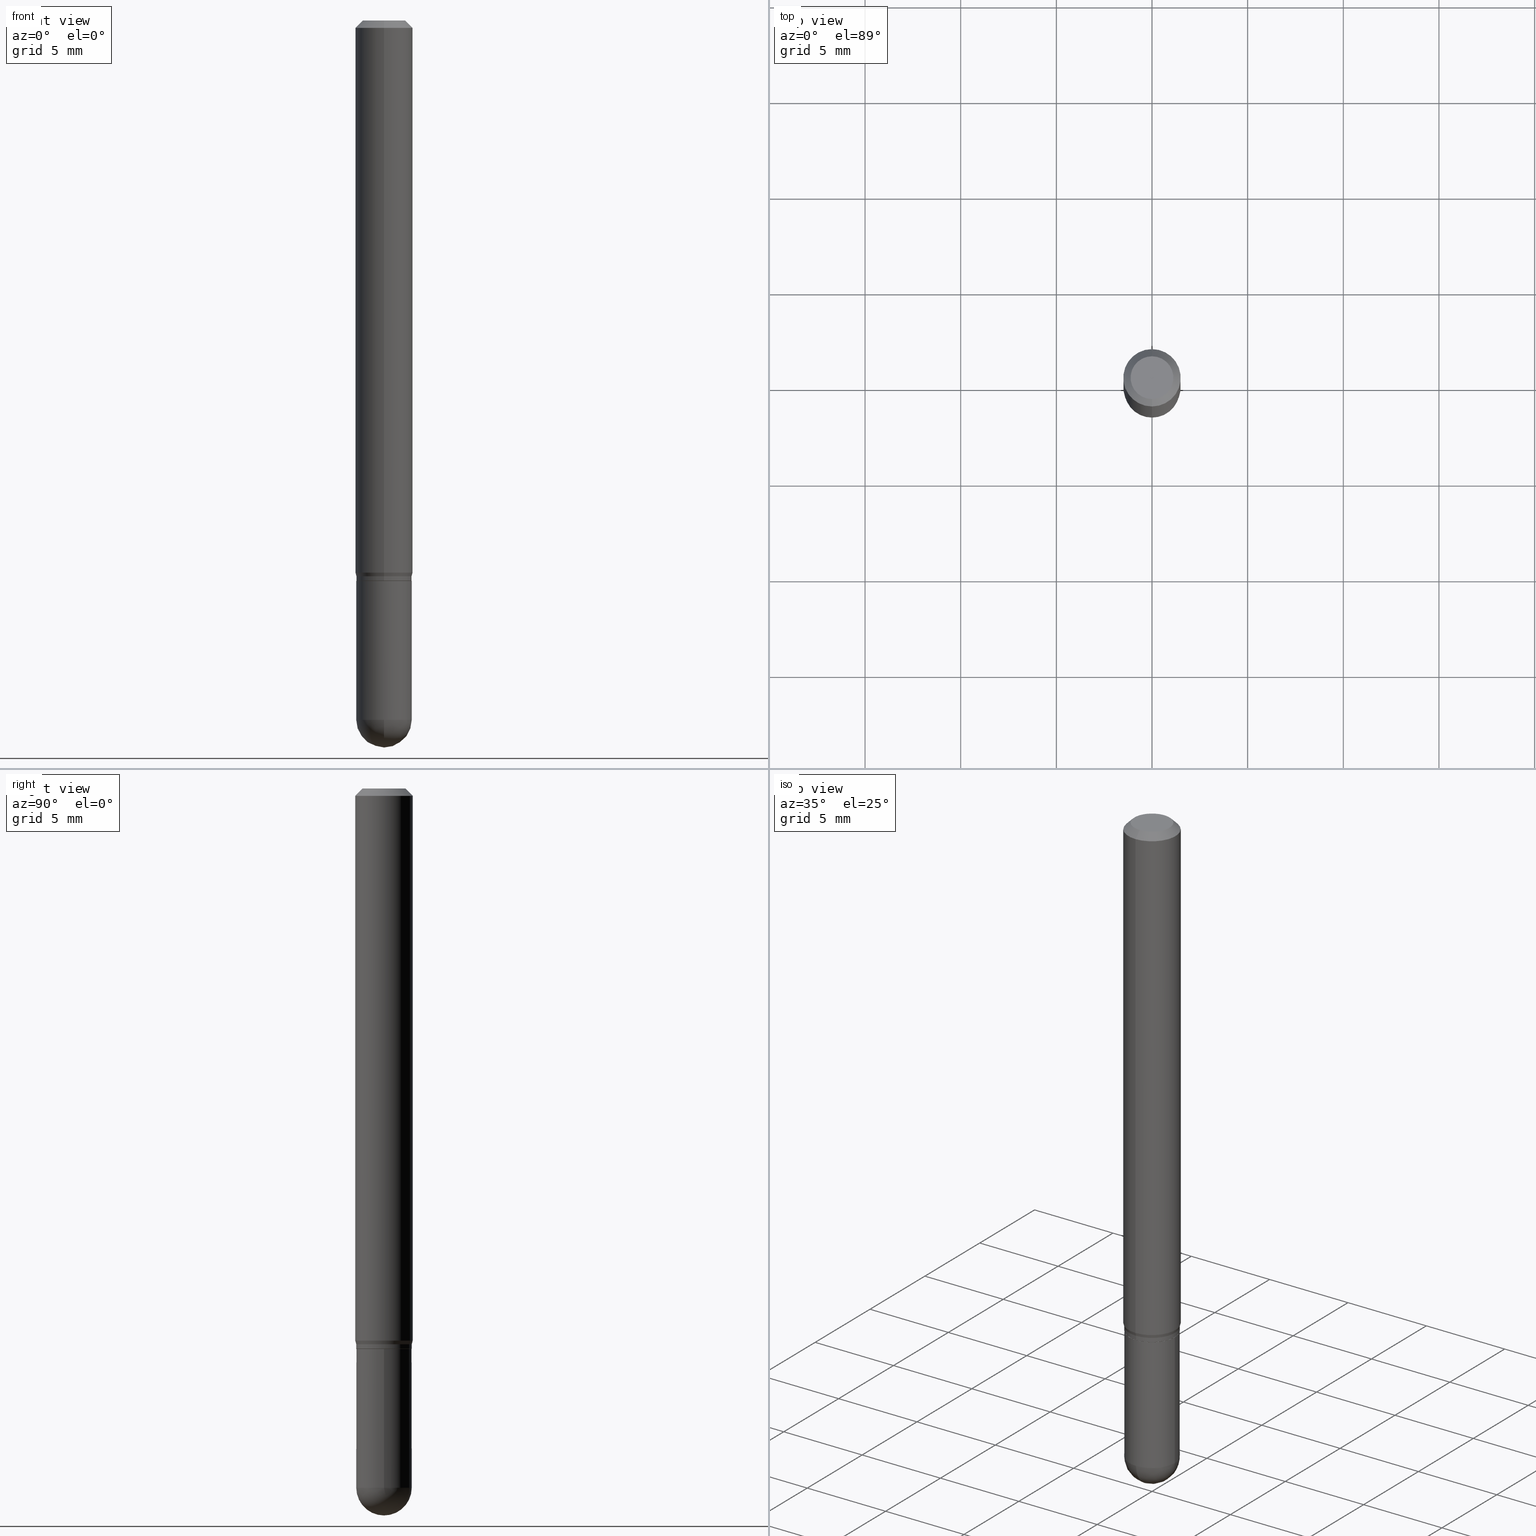
[diagram: canonical four-view strip — front | top / right | iso, engineering-drawing reading convention]
A machine part, canonical four-view strip (front | top / right | iso — engineering-drawing reading convention). The complete STEP part file that produces these views, byte-faithful:
ISO-10303-21;
HEADER;
FILE_DESCRIPTION (( 'STEP AP203' ),
    '1' );
FILE_NAME ('02958.STEP',
    '2024-03-07T22:04:44',
    ( '' ),
    ( '' ),
    'SwSTEP 2.0',
    'SolidWorks 2023',
    '' );
FILE_SCHEMA (( 'CONFIG_CONTROL_DESIGN' ));
ENDSEC;

DATA;
#1 = ORIENTED_EDGE ( 'NONE', *, *, #488, .F. ) ;
#2 = DIRECTION ( 'NONE',  ( -2.445514615068268608E-29, 3.491415737915221099E-15, 1.000000000000000000 ) ) ;
#3 = DATE_AND_TIME ( #42, #182 ) ;
#4 = CC_DESIGN_PERSON_AND_ORGANIZATION_ASSIGNMENT ( #329, #292, ( #304 ) ) ;
#5 = ORIENTED_EDGE ( 'NONE', *, *, #467, .T. ) ;
#6 = DIRECTION ( 'NONE',  ( -2.445514615068268608E-29, 3.491415737915220705E-15, 1.000000000000000000 ) ) ;
#7 = CARTESIAN_POINT ( 'NONE',  ( 2.819922902635220210E-29, -4.025951487390040680E-15, -1.153100000000000014 ) ) ;
#8 = ORIENTED_EDGE ( 'NONE', *, *, #205, .F. ) ;
#9 = AXIS2_PLACEMENT_3D ( 'NONE', #34, #198, #342 ) ;
#10 = DIRECTION ( 'NONE',  ( -2.445468806185136597E-29, 3.491481338843145583E-15, 1.000000000000000000 ) ) ;
#11 = CARTESIAN_POINT ( 'NONE',  ( 3.519029612100411141E-29, -5.024241646595286064E-15, -1.438999999999999835 ) ) ;
#12 = CALENDAR_DATE ( 2024, 7, 3 ) ;
#13 = VERTEX_POINT ( 'NONE', #375 ) ;
#14 = CARTESIAN_POINT ( 'NONE',  ( 3.519029612100411141E-29, -5.024241646595286064E-15, -1.438999999999999835 ) ) ;
#15 = VERTEX_POINT ( 'NONE', #222 ) ;
#16 = ORIENTED_EDGE ( 'NONE', *, *, #467, .F. ) ;
#17 = PERSON_AND_ORGANIZATION ( #426, #233 ) ;
#18 = CARTESIAN_POINT ( 'NONE',  ( 2.819922902635220210E-29, -4.025951487390040680E-15, -1.153100000000000014 ) ) ;
#19 = ORIENTED_EDGE ( 'NONE', *, *, #94, .F. ) ;
#20 = VECTOR ( 'NONE', #431, 39.37007874015748143 ) ;
#21 = DIRECTION ( 'NONE',  ( -2.445514615068268608E-29, 3.491415737915220705E-15, 1.000000000000000000 ) ) ;
#22 = CYLINDRICAL_SURFACE ( 'NONE', #78, 0.05904999999999999832 ) ;
#23 = CALENDAR_DATE ( 2024, 7, 3 ) ;
#24 = CARTESIAN_POINT ( 'NONE',  ( -3.952356875570144057E-16, -0.05660000000000402209, -1.153599999999999737 ) ) ;
#25 = CARTESIAN_POINT ( 'NONE',  ( 0.05709999999999999798, -3.987271688958858118E-16, 2.784296938979478878E-30 ) ) ;
#26 = ADVANCED_FACE ( 'NONE', ( #91 ), #420, .T. ) ;
#27 = APPROVAL_PERSON_ORGANIZATION ( #321, #50, #58 ) ;
#28 = LINE ( 'NONE', #191, #305 ) ;
#29 = CC_DESIGN_PERSON_AND_ORGANIZATION_ASSIGNMENT ( #166, #38, ( #331 ) ) ;
#30 = CARTESIAN_POINT ( 'NONE',  ( 0.000000000000000000, 0.000000000000000000, 0.000000000000000000 ) ) ;
#31 = ADVANCED_FACE ( 'NONE', ( #298 ), #457, .T. ) ;
#32 = CONICAL_SURFACE ( 'NONE', #9, 0.05710000000000005349, 0.2617993877991512397 ) ;
#33 = AXIS2_PLACEMENT_3D ( 'NONE', #409, #49, #245 ) ;
#34 = CARTESIAN_POINT ( 'NONE',  ( 2.796690513792071277E-29, -3.992783037879846006E-15, -1.143599999999999728 ) ) ;
#35 = DIRECTION ( 'NONE',  ( -2.445514615068268608E-29, 3.491415737915220705E-15, 1.000000000000000000 ) ) ;
#36 = PERSON_AND_ORGANIZATION ( #426, #233 ) ;
#37 = EDGE_CURVE ( 'NONE', #335, #48, #389, .T. ) ;
#38 = PERSON_AND_ORGANIZATION_ROLE ( 'design_owner' ) ;
#39 = CIRCLE ( 'NONE', #408, 0.04404999999999999888 ) ;
#40 = CIRCLE ( 'NONE', #133, 0.04404999999999999888 ) ;
#41 = VERTEX_POINT ( 'NONE', #280 ) ;
#42 = CALENDAR_DATE ( 2024, 7, 3 ) ;
#43 = CYLINDRICAL_SURFACE ( 'NONE', #169, 0.05710000000000005349 ) ;
#44 = MANIFOLD_SOLID_BREP ( 'Body-Move/Copy2[2]', #350 ) ;
#45 = DIRECTION ( 'NONE',  ( 1.000000000000000000, -6.982962677686266711E-15, 4.876176775795935232E-29 ) ) ;
#46 = CARTESIAN_POINT ( 'NONE',  ( 2.241747065286492657E-45, -3.200500596455453038E-31, -9.166770263705467281E-17 ) ) ;
#47 = EDGE_LOOP ( 'NONE', ( #19, #473, #493, #129, #296 ) ) ;
#48 = VERTEX_POINT ( 'NONE', #77 ) ;
#49 = DIRECTION ( 'NONE',  ( 2.445514615068268608E-29, -3.491415737915220705E-15, -1.000000000000000000 ) ) ;
#50 = APPROVAL ( #54, 'UNSPECIFIED' ) ;
#51 = VECTOR ( 'NONE', #82, 39.37007874015748143 ) ;
#52 = ORIENTED_EDGE ( 'NONE', *, *, #307, .F. ) ;
#53 = CARTESIAN_POINT ( 'NONE',  ( -3.987271688958582017E-16, -0.05710000000000405029, -1.143599999999999728 ) ) ;
#54 = APPROVAL_STATUS ( 'not_yet_approved' ) ;
#55 = DIRECTION ( 'NONE',  ( 1.000000000000000000, -6.982962677686268288E-15, 0.000000000000000000 ) ) ;
#56 = ORIENTED_EDGE ( 'NONE', *, *, #496, .F. ) ;
#57 = ADVANCED_FACE ( 'NONE', ( #399 ), #43, .T. ) ;
#58 = APPROVAL_ROLE ( '' ) ;
#59 = CIRCLE ( 'NONE', #261, 0.05710000000000005349 ) ;
#60 = CARTESIAN_POINT ( 'NONE',  ( 2.821145659942754453E-29, -4.027697195258998875E-15, -1.153599999999999959 ) ) ;
#61 = CONICAL_SURFACE ( 'NONE', #33, 0.05904999999999999832, 0.7853981633974483900 ) ;
#62 = CARTESIAN_POINT ( 'NONE',  ( 3.514146612589196939E-29, -5.031234379818417148E-15, -1.438999999999999835 ) ) ;
#63 = CALENDAR_DATE ( 2024, 7, 3 ) ;
#64 = CONICAL_SURFACE ( 'NONE', #425, 0.05904999999999999832, 0.7853981633974483900 ) ;
#65 = PLANE ( 'NONE',  #154 ) ;
#66 = DIRECTION ( 'NONE',  ( -6.982962677686265922E-15, -1.000000000000000000, 3.491415737915221099E-15 ) ) ;
#67 = EDGE_LOOP ( 'NONE', ( #241, #209, #106, #450 ) ) ;
#68 = CC_DESIGN_PERSON_AND_ORGANIZATION_ASSIGNMENT ( #17, #449, ( #304 ) ) ;
#69 = EDGE_LOOP ( 'NONE', ( #444, #111, #56, #247 ) ) ;
#70 = DIRECTION ( 'NONE',  ( -2.445514615068268608E-29, 3.491415737915220705E-15, 1.000000000000000000 ) ) ;
#71 = EDGE_LOOP ( 'NONE', ( #360, #476, #149, #84 ) ) ;
#72 = DIRECTION ( 'NONE',  ( -2.445514615068268608E-29, 3.491415737915220705E-15, 1.000000000000000000 ) ) ;
#73 = AXIS2_PLACEMENT_3D ( 'NONE', #14, #176, #229 ) ;
#74 = CARTESIAN_POINT ( 'NONE',  ( 3.519029612100411141E-29, -5.024241646595286064E-15, -1.438999999999999835 ) ) ;
#75 = CC_DESIGN_PERSON_AND_ORGANIZATION_ASSIGNMENT ( #223, #334, ( #239 ) ) ;
#76 = DIRECTION ( 'NONE',  ( -6.982962677686265922E-15, -1.000000000000000000, 2.413293280622141084E-15 ) ) ;
#77 = CARTESIAN_POINT ( 'NONE',  ( -3.987271688958507568E-16, -0.05710000000000504256, -1.438999999999999613 ) ) ;
#78 = AXIS2_PLACEMENT_3D ( 'NONE', #460, #99, #501 ) ;
#79 = CIRCLE ( 'NONE', #374, 0.05710000000000002573 ) ;
#80 = CARTESIAN_POINT ( 'NONE',  ( -4.051124067684085231E-16, -0.05905000000000005383, -0.01499999999999988495 ) ) ;
#81 = DIRECTION ( 'NONE',  ( -6.982962677686265922E-15, -1.000000000000000000, 3.491415737915221099E-15 ) ) ;
#82 = DIRECTION ( 'NONE',  ( 4.937700262164548042E-15, 0.7071067811865451302, -0.7071067811865499042 ) ) ;
#83 = DIRECTION ( 'NONE',  ( -2.445514615068268608E-29, 3.491415737915220705E-15, 1.000000000000000000 ) ) ;
#84 = ORIENTED_EDGE ( 'NONE', *, *, #337, .F. ) ;
#85 = DATE_AND_TIME ( #398, #104 ) ;
#86 = EDGE_CURVE ( 'NONE', #93, #194, #40, .T. ) ;
#87 = CARTESIAN_POINT ( 'NONE',  ( 0.05709999999999999798, -4.426500041385338787E-15, -1.153599999999999959 ) ) ;
#88 = ORIENTED_EDGE ( 'NONE', *, *, #453, .F. ) ;
#89 = EDGE_LOOP ( 'NONE', ( #286, #512, #327, #290 ) ) ;
#90 = ORIENTED_EDGE ( 'NONE', *, *, #438, .F. ) ;
#91 = FACE_OUTER_BOUND ( 'NONE', #481, .T. ) ;
#92 = COORDINATED_UNIVERSAL_TIME_OFFSET ( 5, 0, .BEHIND. ) ;
#93 = VERTEX_POINT ( 'NONE', #472 ) ;
#94 = EDGE_CURVE ( 'NONE', #335, #406, #118, .T. ) ;
#95 = CARTESIAN_POINT ( 'NONE',  ( 2.821145659942754453E-29, -4.027697195258998875E-15, -1.153599999999999959 ) ) ;
#96 = FACE_OUTER_BOUND ( 'NONE', #267, .T. ) ;
#97 = DESIGN_CONTEXT ( 'detailed design', #500, 'design' ) ;
#98 = EDGE_CURVE ( 'NONE', #435, #48, #79, .T. ) ;
#99 = DIRECTION ( 'NONE',  ( -2.445514615068268608E-29, 3.491415737915220705E-15, 1.000000000000000000 ) ) ;
#100 = EDGE_LOOP ( 'NONE', ( #352, #506, #150, #159 ) ) ;
#101 = AXIS2_PLACEMENT_3D ( 'NONE', #491, #173, #76 ) ;
#102 = AXIS2_PLACEMENT_3D ( 'NONE', #368, #6, #485 ) ;
#103 = DIRECTION ( 'NONE',  ( -6.982962677686265922E-15, -1.000000000000000000, 2.413293280622141084E-15 ) ) ;
#104 = LOCAL_TIME ( 17, 4, 44.00000000000000000, #445 ) ;
#105 = DIRECTION ( 'NONE',  ( -2.445514615068268608E-29, 3.491415737915220705E-15, 1.000000000000000000 ) ) ;
#106 = ORIENTED_EDGE ( 'NONE', *, *, #495, .T. ) ;
#107 = VECTOR ( 'NONE', #2, 39.37007874015748143 ) ;
#108 = EDGE_CURVE ( 'NONE', #469, #15, #318, .T. ) ;
#109 = SPHERICAL_SURFACE ( 'NONE', #168, 0.05710000000000002573 ) ;
#110 = DIRECTION ( 'NONE',  ( -6.982962677686265922E-15, -1.000000000000000000, 2.392161115292697767E-15 ) ) ;
#111 = ORIENTED_EDGE ( 'NONE', *, *, #180, .T. ) ;
#112 = ADVANCED_FACE ( 'NONE', ( #437 ), #355, .F. ) ;
#113 = AXIS2_PLACEMENT_3D ( 'NONE', #30, #70, #309 ) ;
#114 = LINE ( 'NONE', #122, #51 ) ;
#115 = EDGE_LOOP ( 'NONE', ( #177, #163, #319, #90 ) ) ;
#116 = CONICAL_SURFACE ( 'NONE', #492, 0.05659999999999999060, 0.7853981633974739252 ) ;
#117 = CARTESIAN_POINT ( 'NONE',  ( 0.000000000000000000, 0.000000000000000000, 0.000000000000000000 ) ) ;
#118 = LINE ( 'NONE', #277, #415 ) ;
#119 = ADVANCED_FACE ( 'NONE', ( #285 ), #116, .T. ) ;
#120 = LINE ( 'NONE', #148, #217 ) ;
#121 = DIRECTION ( 'NONE',  ( -2.445468806185136877E-29, 3.491481338843145188E-15, 1.000000000000000000 ) ) ;
#122 = CARTESIAN_POINT ( 'NONE',  ( 4.123439461173743285E-16, 0.05904999999999994975, -0.01500000000000029955 ) ) ;
#123 = DIRECTION ( 'NONE',  ( 1.000000000000000000, -6.982962677686268288E-15, 0.000000000000000000 ) ) ;
#124 = DIRECTION ( 'NONE',  ( -1.000000000000000000, 6.982962677686265922E-15, -4.876176775795935793E-29 ) ) ;
#125 = APPROVAL_PERSON_ORGANIZATION ( #351, #300, #274 ) ;
#126 = AXIS2_PLACEMENT_3D ( 'NONE', #288, #21, #254 ) ;
#127 = APPROVAL ( #179, 'UNSPECIFIED' ) ;
#128 =( NAMED_UNIT ( * ) PLANE_ANGLE_UNIT ( ) SI_UNIT ( $, .RADIAN. ) );
#129 = ORIENTED_EDGE ( 'NONE', *, *, #461, .T. ) ;
#130 = VERTEX_POINT ( 'NONE', #226 ) ;
#131 = ORIENTED_EDGE ( 'NONE', *, *, #188, .F. ) ;
#132 = VECTOR ( 'NONE', #471, 39.37007874015748143 ) ;
#133 = AXIS2_PLACEMENT_3D ( 'NONE', #46, #510, #153 ) ;
#134 = CYLINDRICAL_SURFACE ( 'NONE', #258, 0.05710000000000005349 ) ;
#135 = SECURITY_CLASSIFICATION_LEVEL ( 'unclassified' ) ;
#136 = ORIENTED_EDGE ( 'NONE', *, *, #270, .T. ) ;
#137 = DIRECTION ( 'NONE',  ( -6.982962677686265922E-15, -1.000000000000000000, 2.413293280622141084E-15 ) ) ;
#138 = CARTESIAN_POINT ( 'NONE',  ( 2.796690513792071277E-29, -3.992783037879846006E-15, -1.143599999999999728 ) ) ;
#139 = LINE ( 'NONE', #303, #184 ) ;
#140 = ADVANCED_BREP_SHAPE_REPRESENTATION ( '02958', ( #386, #44, #489 ), #388 ) ;
#141 = CC_DESIGN_DATE_AND_TIME_ASSIGNMENT ( #3, #161, ( #263 ) ) ;
#142 = AXIS2_PLACEMENT_3D ( 'NONE', #62, #365, #276 ) ;
#143 = DIRECTION ( 'NONE',  ( -6.982962677686265922E-15, -1.000000000000000000, 3.505890868245046092E-15 ) ) ;
#144 = EDGE_CURVE ( 'NONE', #48, #404, #427, .T. ) ;
#145 = CIRCLE ( 'NONE', #348, 0.05709999999999999798 ) ;
#146 = ORIENTED_EDGE ( 'NONE', *, *, #270, .F. ) ;
#147 = EDGE_CURVE ( 'NONE', #358, #483, #456, .T. ) ;
#148 = CARTESIAN_POINT ( 'NONE',  ( -3.987271688958861569E-16, -0.05710000000000005349, 1.993598386349593085E-16 ) ) ;
#149 = ORIENTED_EDGE ( 'NONE', *, *, #257, .F. ) ;
#150 = ORIENTED_EDGE ( 'NONE', *, *, #488, .T. ) ;
#151 = EDGE_CURVE ( 'NONE', #469, #483, #332, .T. ) ;
#152 = CIRCLE ( 'NONE', #465, 0.05709999999999999798 ) ;
#153 = DIRECTION ( 'NONE',  ( -6.982962677686265133E-15, -1.000000000000000000, 3.491415737915221099E-15 ) ) ;
#154 = AXIS2_PLACEMENT_3D ( 'NONE', #60, #418, #66 ) ;
#155 = ORIENTED_EDGE ( 'NONE', *, *, #188, .T. ) ;
#156 = LINE ( 'NONE', #316, #107 ) ;
#157 = DIRECTION ( 'NONE',  ( -2.445514615068268608E-29, 3.491415737915221099E-15, 1.000000000000000000 ) ) ;
#158 = CARTESIAN_POINT ( 'NONE',  ( 3.514146612589196939E-29, -5.031234379818417148E-15, -1.438999999999999835 ) ) ;
#159 = ORIENTED_EDGE ( 'NONE', *, *, #453, .T. ) ;
#160 = FACE_OUTER_BOUND ( 'NONE', #364, .T. ) ;
#161 = DATE_TIME_ROLE ( 'creation_date' ) ;
#162 = CARTESIAN_POINT ( 'NONE',  ( 0.000000000000000000, 0.000000000000000000, 0.000000000000000000 ) ) ;
#163 = ORIENTED_EDGE ( 'NONE', *, *, #243, .T. ) ;
#164 = CC_DESIGN_PERSON_AND_ORGANIZATION_ASSIGNMENT ( #36, #345, ( #263 ) ) ;
#165 = ORIENTED_EDGE ( 'NONE', *, *, #307, .T. ) ;
#166 = PERSON_AND_ORGANIZATION ( #426, #233 ) ;
#167 = ORIENTED_EDGE ( 'NONE', *, *, #400, .T. ) ;
#168 = AXIS2_PLACEMENT_3D ( 'NONE', #271, #268, #266 ) ;
#169 = AXIS2_PLACEMENT_3D ( 'NONE', #162, #208, #202 ) ;
#170 = ORIENTED_EDGE ( 'NONE', *, *, #94, .T. ) ;
#171 = CYLINDRICAL_SURFACE ( 'NONE', #192, 0.05709999999999999798 ) ;
#172 = APPROVAL_DATE_TIME ( #372, #127 ) ;
#173 = DIRECTION ( 'NONE',  ( -2.445514615068268608E-29, 3.491415737915220705E-15, 1.000000000000000000 ) ) ;
#174 = ORIENTED_EDGE ( 'NONE', *, *, #147, .F. ) ;
#175 = ADVANCED_FACE ( 'NONE', ( #250 ), #311, .F. ) ;
#176 = DIRECTION ( 'NONE',  ( -2.445468806185136597E-29, 3.491481338843145583E-15, 1.000000000000000000 ) ) ;
#177 = ORIENTED_EDGE ( 'NONE', *, *, #220, .F. ) ;
#178 = VERTEX_POINT ( 'NONE', #320 ) ;
#179 = APPROVAL_STATUS ( 'not_yet_approved' ) ;
#180 = EDGE_CURVE ( 'NONE', #435, #41, #262, .T. ) ;
#181 = CARTESIAN_POINT ( 'NONE',  ( 4.195754854663667580E-16, 0.05904999999999601540, -1.136322500925241119 ) ) ;
#182 = LOCAL_TIME ( 17, 4, 44.00000000000000000, #317 ) ;
#183 = DIRECTION ( 'NONE',  ( -2.445514615068268608E-29, 3.491415737915220705E-15, 1.000000000000000000 ) ) ;
#184 = VECTOR ( 'NONE', #338, 39.37007874015748143 ) ;
#185 = DIRECTION ( 'NONE',  ( -2.445468806185136597E-29, 3.491481338843145583E-15, 1.000000000000000000 ) ) ;
#186 = DATE_TIME_ROLE ( 'classification_date' ) ;
#187 = DATE_AND_TIME ( #63, #468 ) ;
#188 = EDGE_CURVE ( 'NONE', #396, #130, #156, .T. ) ;
#189 = DIRECTION ( 'NONE',  ( -2.445514615068268608E-29, 3.491415737915220705E-15, 1.000000000000000000 ) ) ;
#190 = CC_DESIGN_APPROVAL ( #300, ( #263 ) ) ;
#191 = CARTESIAN_POINT ( 'NONE',  ( -4.123439461173739834E-16, -0.05904999999999999832, 2.061680993238937719E-16 ) ) ;
#192 = AXIS2_PLACEMENT_3D ( 'NONE', #244, #484, #448 ) ;
#193 = ADVANCED_FACE ( 'NONE', ( #160 ), #65, .F. ) ;
#194 = VERTEX_POINT ( 'NONE', #459 ) ;
#195 = ADVANCED_FACE ( 'NONE', ( #339 ), #325, .T. ) ;
#196 = CC_DESIGN_APPROVAL ( #50, ( #304 ) ) ;
#197 = DIRECTION ( 'NONE',  ( -2.445514615068268608E-29, 3.491415737915220705E-15, 1.000000000000000000 ) ) ;
#198 = DIRECTION ( 'NONE',  ( -2.445514615068268608E-29, 3.491415737915220705E-15, 1.000000000000000000 ) ) ;
#199 = FACE_OUTER_BOUND ( 'NONE', #297, .T. ) ;
#200 = DIRECTION ( 'NONE',  ( 7.105427357601001070E-15, 1.000000000000000000, 0.000000000000000000 ) ) ;
#201 = DIRECTION ( 'NONE',  ( 1.000000000000000000, 0.000000000000000000, 0.000000000000000000 ) ) ;
#202 = DIRECTION ( 'NONE',  ( -6.982962677686265922E-15, -1.000000000000000000, 3.491415737915221099E-15 ) ) ;
#203 = AXIS2_PLACEMENT_3D ( 'NONE', #95, #183, #137 ) ;
#204 = EDGE_LOOP ( 'NONE', ( #323, #213 ) ) ;
#205 = EDGE_CURVE ( 'NONE', #13, #178, #28, .T. ) ;
#206 = CARTESIAN_POINT ( 'NONE',  ( 3.519029612100411141E-29, -5.024241646595286064E-15, -1.438999999999999835 ) ) ;
#207 = CARTESIAN_POINT ( 'NONE',  ( 2.821092814815173687E-29, -4.027772872489452384E-15, -1.153599999999999959 ) ) ;
#208 = DIRECTION ( 'NONE',  ( -2.445514615068268608E-29, 3.491415737915220705E-15, 1.000000000000000000 ) ) ;
#209 = ORIENTED_EDGE ( 'NONE', *, *, #151, .T. ) ;
#210 = CARTESIAN_POINT ( 'NONE',  ( -3.987271688958582017E-16, -0.05710000000000405029, -1.143599999999999728 ) ) ;
#211 = LENGTH_MEASURE_WITH_UNIT ( LENGTH_MEASURE( 0.02539999999999999897 ), #441 );
#212 = CARTESIAN_POINT ( 'NONE',  ( -0.05709999999999999798, -4.120287357423351736E-15, -1.153599999999999959 ) ) ;
#213 = ORIENTED_EDGE ( 'NONE', *, *, #86, .T. ) ;
#214 = ORIENTED_EDGE ( 'NONE', *, *, #151, .F. ) ;
#215 = LINE ( 'NONE', #53, #314 ) ;
#216 = CYLINDRICAL_SURFACE ( 'NONE', #507, 0.05709999999999999798 ) ;
#217 = VECTOR ( 'NONE', #157, 39.37007874015748143 ) ;
#218 = CIRCLE ( 'NONE', #439, 0.05904999999999999832 ) ;
#219 = CIRCLE ( 'NONE', #234, 0.05710000000000005349 ) ;
#220 = EDGE_CURVE ( 'NONE', #15, #396, #139, .T. ) ;
#221 = CARTESIAN_POINT ( 'NONE',  ( 3.651341381666760805E-29, -5.234094330877927075E-15, -1.496099999999999985 ) ) ;
#222 = CARTESIAN_POINT ( 'NONE',  ( 4.126476937927063469E-16, 0.05709999999999605669, -1.143599999999999950 ) ) ;
#223 = PERSON_AND_ORGANIZATION ( #426, #233 ) ;
#224 = LOCAL_TIME ( 17, 4, 44.00000000000000000, #92 ) ;
#225 = CIRCLE ( 'NONE', #102, 0.05659999999999999060 ) ;
#226 = CARTESIAN_POINT ( 'NONE',  ( 4.195754854663671031E-16, 0.05904999999999994975, -0.01500000000000029955 ) ) ;
#227 = ADVANCED_FACE ( 'NONE', ( #306 ), #171, .T. ) ;
#228 = DIRECTION ( 'NONE',  ( -6.982962677686265922E-15, -1.000000000000000000, 2.392161115292697767E-15 ) ) ;
#229 = DIRECTION ( 'NONE',  ( 1.000000000000000000, -6.982962677686259611E-15, 0.000000000000000000 ) ) ;
#230 = APPLICATION_CONTEXT ( 'configuration controlled 3d designs of mechanical parts and assemblies' ) ;
#231 = LINE ( 'NONE', #25, #20 ) ;
#232 = DIRECTION ( 'NONE',  ( -6.982962677686265133E-15, -1.000000000000000000, 3.491415737915221099E-15 ) ) ;
#233 = ORGANIZATION ( 'UNSPECIFIED', 'UNSPECIFIED', '' ) ;
#234 = AXIS2_PLACEMENT_3D ( 'NONE', #390, #35, #371 ) ;
#235 = CARTESIAN_POINT ( 'NONE',  ( -3.952356875570144057E-16, -0.05660000000000402209, -1.153599999999999737 ) ) ;
#236 = APPLICATION_PROTOCOL_DEFINITION ( 'international standard', 'config_control_design', 1994, #230 ) ;
#237 = DIRECTION ( 'NONE',  ( -6.982962677686265922E-15, -1.000000000000000000, 0.000000000000000000 ) ) ;
#238 = ORIENTED_EDGE ( 'NONE', *, *, #402, .T. ) ;
#239 = SECURITY_CLASSIFICATION ( '', '', #135 ) ;
#240 = APPLICATION_PROTOCOL_DEFINITION ( 'international standard', 'config_control_design', 1994, #500 ) ;
#241 = ORIENTED_EDGE ( 'NONE', *, *, #108, .F. ) ;
#242 = VECTOR ( 'NONE', #475, 39.37007874015748143 ) ;
#243 = EDGE_CURVE ( 'NONE', #15, #269, #219, .T. ) ;
#244 = CARTESIAN_POINT ( 'NONE',  ( 0.000000000000000000, 0.000000000000000000, 0.000000000000000000 ) ) ;
#245 = DIRECTION ( 'NONE',  ( 6.982962677686265922E-15, 1.000000000000000000, -3.505890868245046092E-15 ) ) ;
#246 = DIRECTION ( 'NONE',  ( 1.000000000000000000, -6.982962677686259611E-15, 0.000000000000000000 ) ) ;
#247 = ORIENTED_EDGE ( 'NONE', *, *, #144, .F. ) ;
#248 = DIRECTION ( 'NONE',  ( -4.851104656540964275E-15, -0.7071067811865500152, -0.7071067811865450192 ) ) ;
#249 = FACE_OUTER_BOUND ( 'NONE', #89, .T. ) ;
#250 = FACE_OUTER_BOUND ( 'NONE', #204, .T. ) ;
#251 = APPROVAL_DATE_TIME ( #85, #300 ) ;
#252 = FACE_OUTER_BOUND ( 'NONE', #322, .T. ) ;
#253 = ORIENTED_EDGE ( 'NONE', *, *, #395, .F. ) ;
#254 = DIRECTION ( 'NONE',  ( -6.982962677686265922E-15, -1.000000000000000000, 4.626330217890369336E-15 ) ) ;
#255 = AXIS2_PLACEMENT_3D ( 'NONE', #433, #83, #143 ) ;
#256 = ORIENTED_EDGE ( 'NONE', *, *, #421, .F. ) ;
#257 = EDGE_CURVE ( 'NONE', #13, #396, #440, .T. ) ;
#258 = AXIS2_PLACEMENT_3D ( 'NONE', #455, #281, #81 ) ;
#259 = CARTESIAN_POINT ( 'NONE',  ( 4.039435452796452401E-16, 0.05659999999999596604, -1.153600000000000181 ) ) ;
#260 = CARTESIAN_POINT ( 'NONE',  ( 2.778893283443602323E-29, -3.967374263077569282E-15, -1.136322500925240675 ) ) ;
#261 = AXIS2_PLACEMENT_3D ( 'NONE', #346, #197, #110 ) ;
#262 = CIRCLE ( 'NONE', #397, 0.05710000000000002573 ) ;
#263 = PRODUCT_DEFINITION ( 'UNKNOWN', '', #304, #97 ) ;
#264 = CIRCLE ( 'NONE', #101, 0.05659999999999999060 ) ;
#265 = VECTOR ( 'NONE', #370, 39.37007874015748143 ) ;
#266 = DIRECTION ( 'NONE',  ( -6.982962677686265922E-15, -1.000000000000000000, 4.784322230585397112E-15 ) ) ;
#267 = EDGE_LOOP ( 'NONE', ( #293, #422, #287, #1 ) ) ;
#268 = DIRECTION ( 'NONE',  ( 1.000000000000000000, -6.982962677686265922E-15, 4.883557194083112901E-29 ) ) ;
#269 = VERTEX_POINT ( 'NONE', #210 ) ;
#270 = EDGE_CURVE ( 'NONE', #358, #278, #225, .T. ) ;
#271 = CARTESIAN_POINT ( 'NONE',  ( 3.514146612589196939E-29, -5.031234379818417148E-15, -1.438999999999999835 ) ) ;
#272 = ORIENTED_EDGE ( 'NONE', *, *, #37, .F. ) ;
#273 = DIRECTION ( 'NONE',  ( 2.445514615068268047E-29, -3.491415737915221099E-15, -1.000000000000000000 ) ) ;
#274 = APPROVAL_ROLE ( '' ) ;
#275 = AXIS2_PLACEMENT_3D ( 'NONE', #18, #189, #486 ) ;
#276 = DIRECTION ( 'NONE',  ( -6.982962677686265922E-15, -1.000000000000000000, 4.784322230585397112E-15 ) ) ;
#277 = CARTESIAN_POINT ( 'NONE',  ( -0.05709999999999999798, 4.057199021190171918E-16, -2.808711936535550940E-30 ) ) ;
#278 = VERTEX_POINT ( 'NONE', #259 ) ;
#279 = CARTESIAN_POINT ( 'NONE',  ( 3.514146612589196939E-29, -5.031234379818417148E-15, -1.438999999999999835 ) ) ;
#280 = CARTESIAN_POINT ( 'NONE',  ( 4.057199021190523947E-16, 0.05709999999999498116, -1.439000000000000057 ) ) ;
#281 = DIRECTION ( 'NONE',  ( -2.445514615068268608E-29, 3.491415737915220705E-15, 1.000000000000000000 ) ) ;
#282 = UNCERTAINTY_MEASURE_WITH_UNIT (LENGTH_MEASURE( 1.000000000000000082E-05 ), #432, 'distance_accuracy_value', 'NONE');
#283 = CIRCLE ( 'NONE', #511, 0.05710000000000005349 ) ;
#284 = MECHANICAL_CONTEXT ( 'NONE', #230, 'mechanical' ) ;
#285 = FACE_OUTER_BOUND ( 'NONE', #447, .T. ) ;
#286 = ORIENTED_EDGE ( 'NONE', *, *, #474, .T. ) ;
#287 = ORIENTED_EDGE ( 'NONE', *, *, #421, .T. ) ;
#288 = CARTESIAN_POINT ( 'NONE',  ( 2.778893283443602323E-29, -3.967374263077569282E-15, -1.136322500925240675 ) ) ;
#289 = APPROVAL_STATUS ( 'not_yet_approved' ) ;
#290 = ORIENTED_EDGE ( 'NONE', *, *, #495, .F. ) ;
#291 = ORIENTED_EDGE ( 'NONE', *, *, #395, .T. ) ;
#292 = PERSON_AND_ORGANIZATION_ROLE ( 'creator' ) ;
#293 = ORIENTED_EDGE ( 'NONE', *, *, #86, .F. ) ;
#294 = CIRCLE ( 'NONE', #424, 0.05904999999999999832 ) ;
#295 = CLOSED_SHELL ( 'NONE', ( #227, #31, #112, #359, #470 ) ) ;
#296 = ORIENTED_EDGE ( 'NONE', *, *, #402, .F. ) ;
#297 = EDGE_LOOP ( 'NONE', ( #324, #487, #272, #52 ) ) ;
#298 = FACE_OUTER_BOUND ( 'NONE', #69, .T. ) ;
#299 = FACE_OUTER_BOUND ( 'NONE', #100, .T. ) ;
#300 = APPROVAL ( #289, 'UNSPECIFIED' ) ;
#301 = DIRECTION ( 'NONE',  ( 6.982962677686265922E-15, 1.000000000000000000, -3.505890868245046092E-15 ) ) ;
#302 = APPROVAL_ROLE ( '' ) ;
#303 = CARTESIAN_POINT ( 'NONE',  ( 4.057199021190454922E-16, 0.05709999999999605669, -1.143599999999999950 ) ) ;
#304 = PRODUCT_DEFINITION_FORMATION_WITH_SPECIFIED_SOURCE ( 'ANY', '', #331, .NOT_KNOWN. ) ;
#305 = VECTOR ( 'NONE', #499, 39.37007874015748143 ) ;
#306 = FACE_OUTER_BOUND ( 'NONE', #446, .T. ) ;
#307 = EDGE_CURVE ( 'NONE', #41, #335, #452, .T. ) ;
#308 = LOCAL_TIME ( 17, 4, 44.00000000000000000, #412 ) ;
#309 = DIRECTION ( 'NONE',  ( -6.982962677686265922E-15, -1.000000000000000000, 3.491415737915220705E-15 ) ) ;
#310 = CC_DESIGN_DATE_AND_TIME_ASSIGNMENT ( #498, #186, ( #239 ) ) ;
#311 = PLANE ( 'NONE',  #383 ) ;
#312 = ADVANCED_FACE ( 'NONE', ( #249 ), #134, .T. ) ;
#313 = DIRECTION ( 'NONE',  ( -2.445468806185136597E-29, 3.491481338843145583E-15, 1.000000000000000000 ) ) ;
#314 = VECTOR ( 'NONE', #366, 39.37007874015748143 ) ;
#315 = EDGE_LOOP ( 'NONE', ( #454, #155, #256, #8 ) ) ;
#316 = CARTESIAN_POINT ( 'NONE',  ( 4.195754854663390985E-16, 0.05904999999999999832, -2.061680993238937719E-16 ) ) ;
#317 = COORDINATED_UNIVERSAL_TIME_OFFSET ( 5, 0, .BEHIND. ) ;
#318 = LINE ( 'NONE', #443, #242 ) ;
#319 = ORIENTED_EDGE ( 'NONE', *, *, #337, .T. ) ;
#320 = CARTESIAN_POINT ( 'NONE',  ( -4.123439461173736383E-16, -0.05905000000000005383, -0.01499999999999988495 ) ) ;
#321 = PERSON_AND_ORGANIZATION ( #426, #233 ) ;
#322 = EDGE_LOOP ( 'NONE', ( #131, #356, #430, #88 ) ) ;
#323 = ORIENTED_EDGE ( 'NONE', *, *, #378, .T. ) ;
#324 = ORIENTED_EDGE ( 'NONE', *, *, #180, .F. ) ;
#325 = CONICAL_SURFACE ( 'NONE', #410, 0.05710000000000005349, 0.2617993877991512397 ) ;
#326 = SHAPE_DEFINITION_REPRESENTATION ( #502, #140 ) ;
#327 = ORIENTED_EDGE ( 'NONE', *, *, #357, .F. ) ;
#328 = EDGE_LOOP ( 'NONE', ( #291, #238 ) ) ;
#329 = PERSON_AND_ORGANIZATION ( #426, #233 ) ;
#330 = DIRECTION ( 'NONE',  ( -2.445514615068268608E-29, 3.491415737915220705E-15, 1.000000000000000000 ) ) ;
#331 = PRODUCT ( '02958', '02958', '', ( #284 ) ) ;
#332 = CIRCLE ( 'NONE', #275, 0.05710000000000005349 ) ;
#333 = ADVANCED_FACE ( 'NONE', ( #96 ), #61, .T. ) ;
#334 = PERSON_AND_ORGANIZATION_ROLE ( 'classification_officer' ) ;
#335 = VERTEX_POINT ( 'NONE', #401 ) ;
#336 = AXIS2_PLACEMENT_3D ( 'NONE', #74, #393, #347 ) ;
#337 = EDGE_CURVE ( 'NONE', #269, #13, #215, .T. ) ;
#338 = DIRECTION ( 'NONE',  ( 1.839019923739607021E-15, 0.2588190451025259020, 0.9659258262890669799 ) ) ;
#339 = FACE_OUTER_BOUND ( 'NONE', #115, .T. ) ;
#340 = ADVANCED_FACE ( 'NONE', ( #299 ), #64, .T. ) ;
#341 = VECTOR ( 'NONE', #248, 39.37007874015748143 ) ;
#342 = DIRECTION ( 'NONE',  ( -6.982962677686265922E-15, -1.000000000000000000, 2.392161115292697767E-15 ) ) ;
#343 = ADVANCED_FACE ( 'NONE', ( #463 ), #380, .T. ) ;
#344 = CARTESIAN_POINT ( 'NONE',  ( 3.075995059520799729E-16, 0.04404999999999999888, -1.996307145736928084E-16 ) ) ;
#345 = PERSON_AND_ORGANIZATION_ROLE ( 'creator' ) ;
#346 = CARTESIAN_POINT ( 'NONE',  ( 2.796690513792071277E-29, -3.992783037879846006E-15, -1.143599999999999728 ) ) ;
#347 = DIRECTION ( 'NONE',  ( 1.000000000000000000, -6.982962677686259611E-15, 0.000000000000000000 ) ) ;
#348 = AXIS2_PLACEMENT_3D ( 'NONE', #361, #10, #55 ) ;
#349 = ORIENTED_EDGE ( 'NONE', *, *, #496, .T. ) ;
#350 = CLOSED_SHELL ( 'NONE', ( #312, #119, #333, #343, #384, #195, #417, #340, #175, #193, #26, #57 ) ) ;
#351 = PERSON_AND_ORGANIZATION ( #426, #233 ) ;
#352 = ORIENTED_EDGE ( 'NONE', *, *, #387, .F. ) ;
#353 = DIRECTION ( 'NONE',  ( 6.982962677686265922E-15, 1.000000000000000000, -3.491415737915221099E-15 ) ) ;
#354 =( NAMED_UNIT ( * ) SI_UNIT ( $, .STERADIAN. ) SOLID_ANGLE_UNIT ( ) );
#355 = PLANE ( 'NONE',  #466 ) ;
#356 = ORIENTED_EDGE ( 'NONE', *, *, #438, .T. ) ;
#357 = EDGE_CURVE ( 'NONE', #269, #15, #59, .T. ) ;
#358 = VERTEX_POINT ( 'NONE', #235 ) ;
#359 = ADVANCED_FACE ( 'NONE', ( #199 ), #109, .T. ) ;
#360 = ORIENTED_EDGE ( 'NONE', *, *, #357, .T. ) ;
#361 = CARTESIAN_POINT ( 'NONE',  ( 2.821092814815173687E-29, -4.027772872489452384E-15, -1.153599999999999959 ) ) ;
#362 = CARTESIAN_POINT ( 'NONE',  ( 4.057199021190452949E-16, 0.05709999999999596648, -1.153100000000000014 ) ) ;
#363 = ORIENTED_EDGE ( 'NONE', *, *, #147, .T. ) ;
#364 = EDGE_LOOP ( 'NONE', ( #146, #381 ) ) ;
#365 = DIRECTION ( 'NONE',  ( 1.000000000000000000, -6.982962677686265922E-15, 4.883557194083112901E-29 ) ) ;
#366 = DIRECTION ( 'NONE',  ( -1.807323732225336845E-15, -0.2588190451025191297, 0.9659258262890687563 ) ) ;
#367 = APPROVAL_DATE_TIME ( #187, #50 ) ;
#368 = CARTESIAN_POINT ( 'NONE',  ( 2.821145659942754453E-29, -4.027697195258998875E-15, -1.153599999999999959 ) ) ;
#369 = PERSON_AND_ORGANIZATION ( #426, #233 ) ;
#370 = DIRECTION ( 'NONE',  ( -4.937700262164674260E-15, -0.7071067811865632269, 0.7071067811865319186 ) ) ;
#371 = DIRECTION ( 'NONE',  ( -6.982962677686265922E-15, -1.000000000000000000, 2.392161115292697767E-15 ) ) ;
#372 = DATE_AND_TIME ( #23, #224 ) ;
#373 = APPROVAL_PERSON_ORGANIZATION ( #369, #127, #302 ) ;
#374 = AXIS2_PLACEMENT_3D ( 'NONE', #158, #434, #237 ) ;
#375 = CARTESIAN_POINT ( 'NONE',  ( -4.123439461173463240E-16, -0.05905000000000398819, -1.136322500925240453 ) ) ;
#376 = DIRECTION ( 'NONE',  ( -6.982962677686265922E-15, -1.000000000000000000, 4.626330217890369336E-15 ) ) ;
#377 = CARTESIAN_POINT ( 'NONE',  ( 2.821145659942754453E-29, -4.027697195258998875E-15, -1.153599999999999959 ) ) ;
#378 = EDGE_CURVE ( 'NONE', #194, #93, #39, .T. ) ;
#379 = CARTESIAN_POINT ( 'NONE',  ( 3.668271922602425245E-31, -5.237123606872862661E-17, -0.01500000000000009139 ) ) ;
#380 = CYLINDRICAL_SURFACE ( 'NONE', #113, 0.05904999999999999832 ) ;
#381 = ORIENTED_EDGE ( 'NONE', *, *, #400, .F. ) ;
#382 = CIRCLE ( 'NONE', #255, 0.05904999999999999832 ) ;
#383 = AXIS2_PLACEMENT_3D ( 'NONE', #344, #273, #353 ) ;
#384 = ADVANCED_FACE ( 'NONE', ( #385 ), #32, .T. ) ;
#385 = FACE_OUTER_BOUND ( 'NONE', #71, .T. ) ;
#386 = MANIFOLD_SOLID_BREP ( 'Body-Move/Copy2[1]', #295 ) ;
#387 = EDGE_CURVE ( 'NONE', #93, #178, #508, .T. ) ;
#388 =( GEOMETRIC_REPRESENTATION_CONTEXT ( 3 ) GLOBAL_UNCERTAINTY_ASSIGNED_CONTEXT ( ( #282 ) ) GLOBAL_UNIT_ASSIGNED_CONTEXT ( ( #432, #128, #354 ) ) REPRESENTATION_CONTEXT ( 'NONE', 'WORKASPACE' ) );
#389 = CIRCLE ( 'NONE', #336, 0.05709999999999999798 ) ;
#390 = CARTESIAN_POINT ( 'NONE',  ( 2.796690513792071277E-29, -3.992783037879846006E-15, -1.143599999999999728 ) ) ;
#391 = DIRECTION ( 'NONE',  ( -6.982962677686265922E-15, -1.000000000000000000, 3.505890868245046092E-15 ) ) ;
#392 = DIRECTION ( 'NONE',  ( -2.445468806185136597E-29, 3.491481338843145583E-15, 1.000000000000000000 ) ) ;
#393 = DIRECTION ( 'NONE',  ( -2.445468806185136597E-29, 3.491481338843145583E-15, 1.000000000000000000 ) ) ;
#394 = DIMENSIONAL_EXPONENTS ( 1.000000000000000000, 0.000000000000000000, 0.000000000000000000, 0.000000000000000000, 0.000000000000000000, 0.000000000000000000, 0.000000000000000000 ) ;
#395 = EDGE_CURVE ( 'NONE', #411, #406, #145, .T. ) ;
#396 = VERTEX_POINT ( 'NONE', #181 ) ;
#397 = AXIS2_PLACEMENT_3D ( 'NONE', #279, #428, #200 ) ;
#398 = CALENDAR_DATE ( 2024, 7, 3 ) ;
#399 = FACE_OUTER_BOUND ( 'NONE', #67, .T. ) ;
#400 = EDGE_CURVE ( 'NONE', #278, #358, #264, .T. ) ;
#401 = CARTESIAN_POINT ( 'NONE',  ( -0.05709999999999999798, -4.120287357423352525E-15, -1.438999999999999835 ) ) ;
#402 = EDGE_CURVE ( 'NONE', #406, #411, #152, .T. ) ;
#403 = CARTESIAN_POINT ( 'NONE',  ( 3.987271688959139643E-16, 0.05709999999999596648, -1.153600000000000181 ) ) ;
#404 = VERTEX_POINT ( 'NONE', #442 ) ;
#405 = FACE_OUTER_BOUND ( 'NONE', #47, .T. ) ;
#406 = VERTEX_POINT ( 'NONE', #212 ) ;
#407 = ORIENTED_EDGE ( 'NONE', *, *, #474, .F. ) ;
#408 = AXIS2_PLACEMENT_3D ( 'NONE', #423, #105, #232 ) ;
#409 = CARTESIAN_POINT ( 'NONE',  ( 3.668271922602425245E-31, -5.237123606872862661E-17, -0.01500000000000009139 ) ) ;
#410 = AXIS2_PLACEMENT_3D ( 'NONE', #138, #504, #228 ) ;
#411 = VERTEX_POINT ( 'NONE', #87 ) ;
#412 = COORDINATED_UNIVERSAL_TIME_OFFSET ( 5, 0, .BEHIND. ) ;
#413 = CC_DESIGN_APPROVAL ( #127, ( #239 ) ) ;
#414 = DIRECTION ( 'NONE',  ( -2.445514615068268608E-29, 3.491415737915220705E-15, 1.000000000000000000 ) ) ;
#415 = VECTOR ( 'NONE', #121, 39.37007874015748143 ) ;
#416 = CARTESIAN_POINT ( 'NONE',  ( 4.021671884402447909E-16, 0.05659999999999596604, -1.153600000000000181 ) ) ;
#417 = ADVANCED_FACE ( 'NONE', ( #252 ), #22, .T. ) ;
#418 = DIRECTION ( 'NONE',  ( -2.445514615068268047E-29, 3.491415737915221099E-15, 1.000000000000000000 ) ) ;
#419 = CIRCLE ( 'NONE', #451, 0.05709999999999999798 ) ;
#420 = CONICAL_SURFACE ( 'NONE', #203, 0.05659999999999999060, 0.7853981633974739252 ) ;
#421 = EDGE_CURVE ( 'NONE', #178, #130, #382, .T. ) ;
#422 = ORIENTED_EDGE ( 'NONE', *, *, #387, .T. ) ;
#423 = CARTESIAN_POINT ( 'NONE',  ( 2.241747065286492657E-45, -3.200500596455453038E-31, -9.166770263705467281E-17 ) ) ;
#424 = AXIS2_PLACEMENT_3D ( 'NONE', #379, #72, #391 ) ;
#425 = AXIS2_PLACEMENT_3D ( 'NONE', #458, #497, #301 ) ;
#426 = PERSON ( 'UNSPECIFIED', 'UNSPECIFIED', 'UNSPECIFIED', ('UNSPECIFIED'), ('UNSPECIFIED'), ('UNSPECIFIED') ) ;
#427 = CIRCLE ( 'NONE', #73, 0.05709999999999999798 ) ;
#428 = DIRECTION ( 'NONE',  ( 1.000000000000000000, -7.105427357601001070E-15, 4.926315508542082329E-29 ) ) ;
#429 = DIRECTION ( 'NONE',  ( 0.000000000000000000, 0.000000000000000000, 1.000000000000000000 ) ) ;
#430 = ORIENTED_EDGE ( 'NONE', *, *, #205, .T. ) ;
#431 = DIRECTION ( 'NONE',  ( -2.445468806185136877E-29, 3.491481338843145188E-15, 1.000000000000000000 ) ) ;
#432 =( CONVERSION_BASED_UNIT ( 'INCH', #211 ) LENGTH_UNIT ( ) NAMED_UNIT ( #394 ) );
#433 = CARTESIAN_POINT ( 'NONE',  ( 3.668271922602425245E-31, -5.237123606872862661E-17, -0.01500000000000009139 ) ) ;
#434 = DIRECTION ( 'NONE',  ( -1.000000000000000000, 6.982962677686265922E-15, -4.883557194083112340E-29 ) ) ;
#435 = VERTEX_POINT ( 'NONE', #221 ) ;
#436 = DIRECTION ( 'NONE',  ( -6.982962677686265922E-15, -1.000000000000000000, 2.392161115292697767E-15 ) ) ;
#437 = FACE_OUTER_BOUND ( 'NONE', #328, .T. ) ;
#438 = EDGE_CURVE ( 'NONE', #396, #13, #218, .T. ) ;
#439 = AXIS2_PLACEMENT_3D ( 'NONE', #260, #330, #376 ) ;
#440 = CIRCLE ( 'NONE', #126, 0.05904999999999999832 ) ;
#441 =( LENGTH_UNIT ( ) NAMED_UNIT ( * ) SI_UNIT ( $, .METRE. ) );
#442 = CARTESIAN_POINT ( 'NONE',  ( 0.05709999999999999798, -4.924734428438255627E-15, -1.438999999999999835 ) ) ;
#443 = CARTESIAN_POINT ( 'NONE',  ( 4.057199021190175369E-16, 0.05710000000000005349, -1.993598386349593085E-16 ) ) ;
#444 = ORIENTED_EDGE ( 'NONE', *, *, #98, .F. ) ;
#445 = COORDINATED_UNIVERSAL_TIME_OFFSET ( 5, 0, .BEHIND. ) ;
#446 = EDGE_LOOP ( 'NONE', ( #165, #170, #253, #462, #349 ) ) ;
#447 = EDGE_LOOP ( 'NONE', ( #136, #5, #407, #174 ) ) ;
#448 = DIRECTION ( 'NONE',  ( 1.000000000000000000, -6.982962677686266711E-15, 4.876176775795935232E-29 ) ) ;
#449 = PERSON_AND_ORGANIZATION_ROLE ( 'design_supplier' ) ;
#450 = ORIENTED_EDGE ( 'NONE', *, *, #243, .F. ) ;
#451 = AXIS2_PLACEMENT_3D ( 'NONE', #206, #392, #246 ) ;
#452 = CIRCLE ( 'NONE', #503, 0.05709999999999999798 ) ;
#453 = EDGE_CURVE ( 'NONE', #130, #178, #294, .T. ) ;
#454 = ORIENTED_EDGE ( 'NONE', *, *, #257, .T. ) ;
#455 = CARTESIAN_POINT ( 'NONE',  ( 0.000000000000000000, 0.000000000000000000, 0.000000000000000000 ) ) ;
#456 = LINE ( 'NONE', #24, #265 ) ;
#457 = SPHERICAL_SURFACE ( 'NONE', #142, 0.05710000000000002573 ) ;
#458 = CARTESIAN_POINT ( 'NONE',  ( 3.668271922602425245E-31, -5.237123606872862661E-17, -0.01500000000000009139 ) ) ;
#459 = CARTESIAN_POINT ( 'NONE',  ( 3.599717260347271507E-16, 0.04404999999999999888, -2.454645658922201879E-16 ) ) ;
#460 = CARTESIAN_POINT ( 'NONE',  ( 0.000000000000000000, 0.000000000000000000, 0.000000000000000000 ) ) ;
#461 = EDGE_CURVE ( 'NONE', #404, #411, #231, .T. ) ;
#462 = ORIENTED_EDGE ( 'NONE', *, *, #461, .F. ) ;
#463 = FACE_OUTER_BOUND ( 'NONE', #315, .T. ) ;
#464 = PRODUCT_RELATED_PRODUCT_CATEGORY ( 'detail', '', ( #331 ) ) ;
#465 = AXIS2_PLACEMENT_3D ( 'NONE', #207, #478, #123 ) ;
#466 = AXIS2_PLACEMENT_3D ( 'NONE', #403, #479, #124 ) ;
#467 = EDGE_CURVE ( 'NONE', #278, #469, #505, .T. ) ;
#468 = LOCAL_TIME ( 17, 4, 44.00000000000000000, #494 ) ;
#469 = VERTEX_POINT ( 'NONE', #362 ) ;
#470 = ADVANCED_FACE ( 'NONE', ( #405 ), #216, .T. ) ;
#471 = DIRECTION ( 'NONE',  ( 5.024295867788190974E-15, 0.7071067811865681119, 0.7071067811865270336 ) ) ;
#472 = CARTESIAN_POINT ( 'NONE',  ( -3.536586717851222218E-16, -0.04404999999999999888, 6.212916061811080532E-17 ) ) ;
#473 = ORIENTED_EDGE ( 'NONE', *, *, #37, .T. ) ;
#474 = EDGE_CURVE ( 'NONE', #483, #469, #283, .T. ) ;
#475 = DIRECTION ( 'NONE',  ( -2.445514615068268608E-29, 3.491415737915221099E-15, 1.000000000000000000 ) ) ;
#476 = ORIENTED_EDGE ( 'NONE', *, *, #220, .T. ) ;
#477 = DIRECTION ( 'NONE',  ( -2.445514615068268608E-29, 3.491415737915220705E-15, 1.000000000000000000 ) ) ;
#478 = DIRECTION ( 'NONE',  ( -2.445468806185136597E-29, 3.491481338843145583E-15, 1.000000000000000000 ) ) ;
#479 = DIRECTION ( 'NONE',  ( 2.438088387897960049E-29, -3.491481338843145188E-15, -1.000000000000000000 ) ) ;
#480 = CC_DESIGN_SECURITY_CLASSIFICATION ( #239, ( #304 ) ) ;
#481 = EDGE_LOOP ( 'NONE', ( #16, #167, #363, #214 ) ) ;
#482 = CARTESIAN_POINT ( 'NONE',  ( -3.987271688958584482E-16, -0.05710000000000414744, -1.153099999999999792 ) ) ;
#483 = VERTEX_POINT ( 'NONE', #482 ) ;
#484 = DIRECTION ( 'NONE',  ( -2.445468806185136597E-29, 3.491481338843145583E-15, 1.000000000000000000 ) ) ;
#485 = DIRECTION ( 'NONE',  ( -6.982962677686265922E-15, -1.000000000000000000, 2.413293280622141084E-15 ) ) ;
#486 = DIRECTION ( 'NONE',  ( -6.982962677686265922E-15, -1.000000000000000000, 2.392161115292697767E-15 ) ) ;
#487 = ORIENTED_EDGE ( 'NONE', *, *, #98, .T. ) ;
#488 = EDGE_CURVE ( 'NONE', #194, #130, #114, .T. ) ;
#489 = AXIS2_PLACEMENT_3D ( 'NONE', #509, #429, #201 ) ;
#490 = DIRECTION ( 'NONE',  ( 1.000000000000000000, -6.982962677686259611E-15, 0.000000000000000000 ) ) ;
#491 = CARTESIAN_POINT ( 'NONE',  ( 2.821145659942754453E-29, -4.027697195258998875E-15, -1.153599999999999959 ) ) ;
#492 = AXIS2_PLACEMENT_3D ( 'NONE', #377, #414, #103 ) ;
#493 = ORIENTED_EDGE ( 'NONE', *, *, #144, .T. ) ;
#494 = COORDINATED_UNIVERSAL_TIME_OFFSET ( 5, 0, .BEHIND. ) ;
#495 = EDGE_CURVE ( 'NONE', #483, #269, #120, .T. ) ;
#496 = EDGE_CURVE ( 'NONE', #404, #41, #419, .T. ) ;
#497 = DIRECTION ( 'NONE',  ( 2.445514615068268608E-29, -3.491415737915220705E-15, -1.000000000000000000 ) ) ;
#498 = DATE_AND_TIME ( #12, #308 ) ;
#499 = DIRECTION ( 'NONE',  ( -2.445514615068268608E-29, 3.491415737915221099E-15, 1.000000000000000000 ) ) ;
#500 = APPLICATION_CONTEXT ( 'configuration controlled 3d designs of mechanical parts and assemblies' ) ;
#501 = DIRECTION ( 'NONE',  ( -6.982962677686265922E-15, -1.000000000000000000, 3.491415737915220705E-15 ) ) ;
#502 = PRODUCT_DEFINITION_SHAPE ( 'NONE', 'NONE',  #263 ) ;
#503 = AXIS2_PLACEMENT_3D ( 'NONE', #11, #185, #490 ) ;
#504 = DIRECTION ( 'NONE',  ( -2.445514615068268608E-29, 3.491415737915220705E-15, 1.000000000000000000 ) ) ;
#505 = LINE ( 'NONE', #416, #132 ) ;
#506 = ORIENTED_EDGE ( 'NONE', *, *, #378, .F. ) ;
#507 = AXIS2_PLACEMENT_3D ( 'NONE', #117, #313, #45 ) ;
#508 = LINE ( 'NONE', #80, #341 ) ;
#509 = CARTESIAN_POINT ( 'NONE',  ( 0.000000000000000000, 0.000000000000000000, 0.000000000000000000 ) ) ;
#510 = DIRECTION ( 'NONE',  ( -2.445514615068268608E-29, 3.491415737915220705E-15, 1.000000000000000000 ) ) ;
#511 = AXIS2_PLACEMENT_3D ( 'NONE', #7, #477, #436 ) ;
#512 = ORIENTED_EDGE ( 'NONE', *, *, #108, .T. ) ;
ENDSEC;
END-ISO-10303-21;
